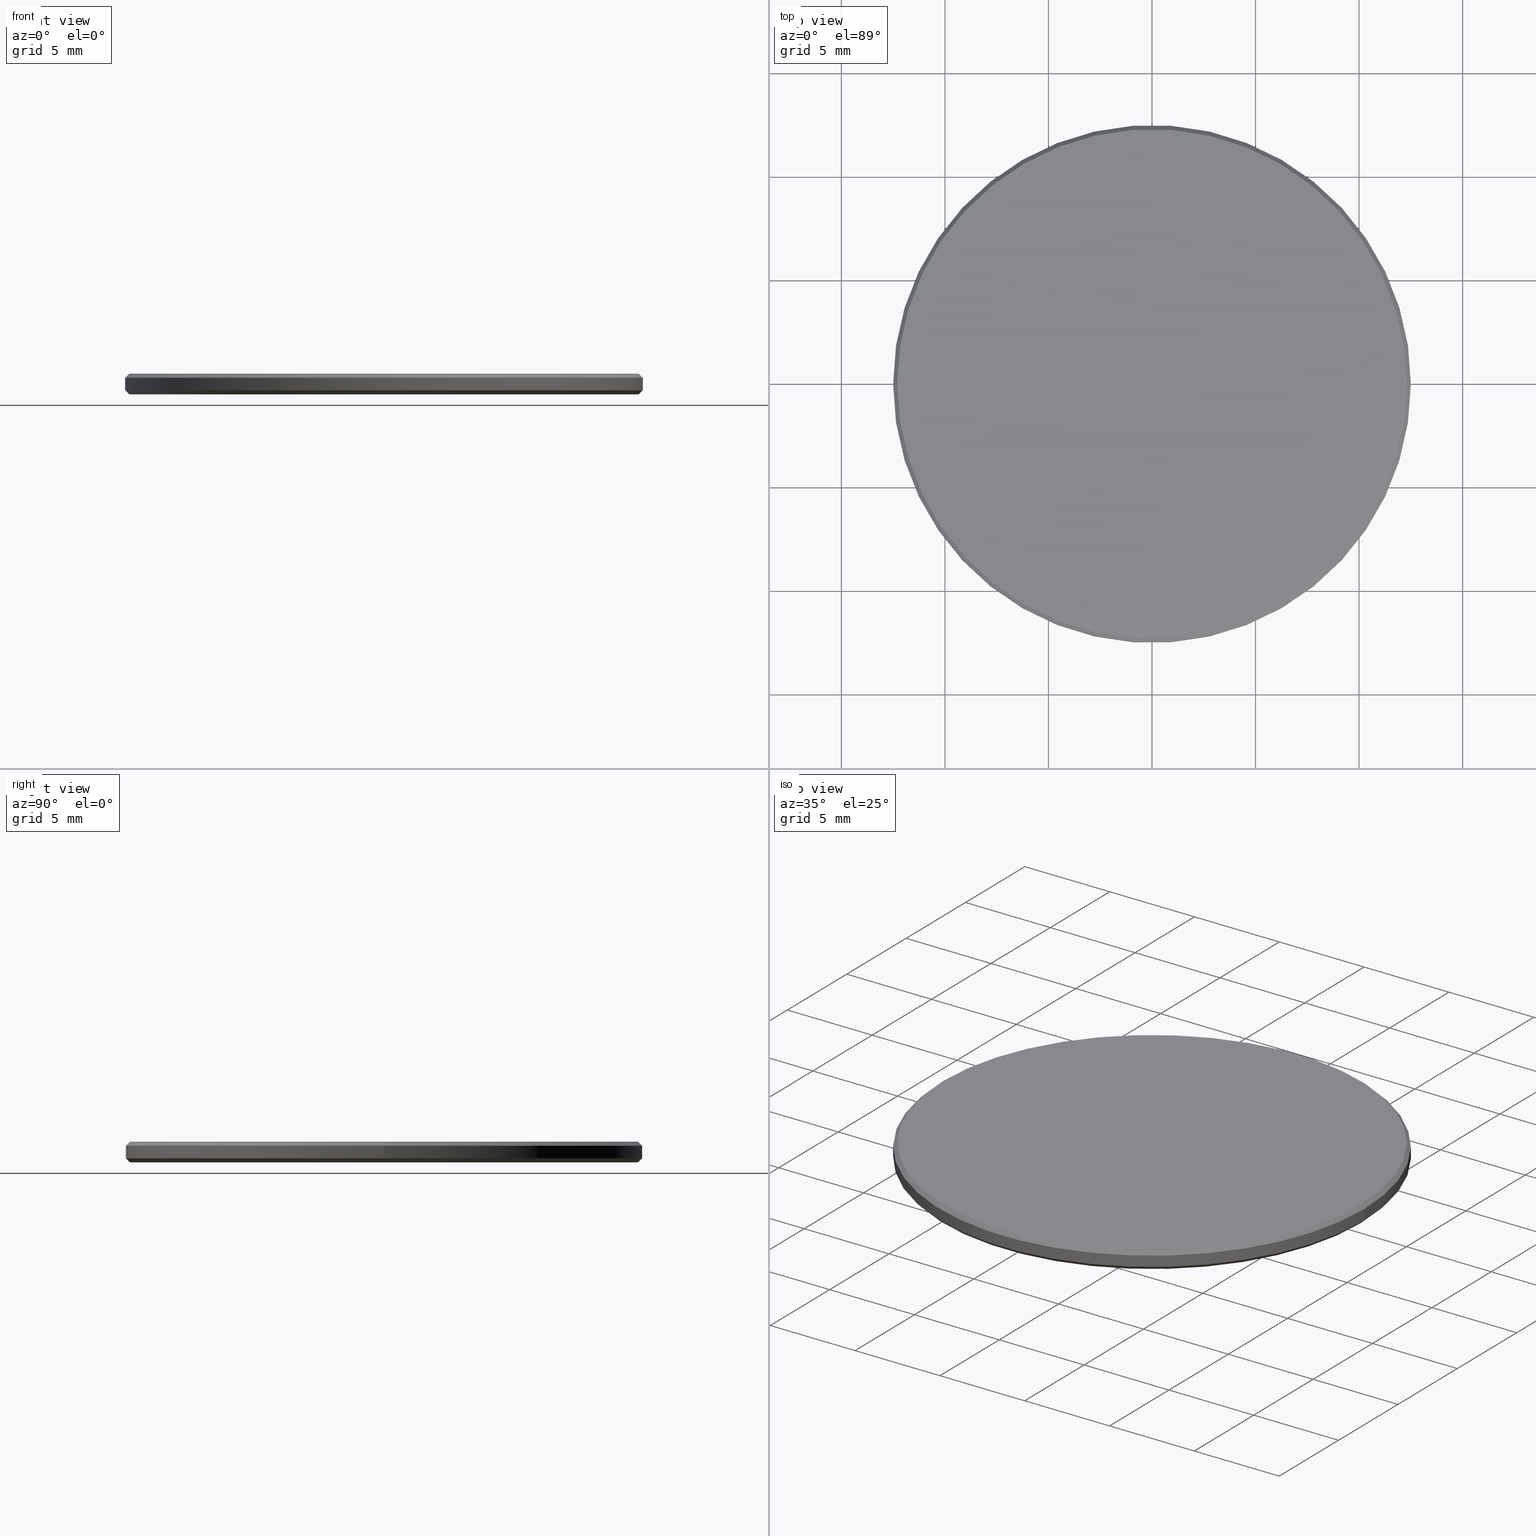
[diagram: canonical four-view strip — front | top / right | iso, engineering-drawing reading convention]
A machine part, canonical four-view strip (front | top / right | iso — engineering-drawing reading convention). The complete STEP part file that produces these views, byte-faithful:
ISO-10303-21;
HEADER;
FILE_DESCRIPTION (( 'STEP AP214' ),
    '1' );
FILE_NAME ('GNIF-350-3330-D25.STEP',
    '2024-07-19T14:32:16',
    ( '' ),
    ( '' ),
    'SwSTEP 2.0',
    'SolidWorks 2022',
    '' );
FILE_SCHEMA (( 'AUTOMOTIVE_DESIGN' ));
ENDSEC;

DATA;
#1 = ORIENTED_EDGE ( 'NONE', *, *, #40, .F. ) ;
#2 = CARTESIAN_POINT ( 'NONE',  ( 0.000000000000000000, 0.000000000000000000, 0.1999999999999987899 ) ) ;
#3 = DIRECTION ( 'NONE',  ( 1.000000000000000000, 0.000000000000000000, -0.000000000000000000 ) ) ;
#4 = CARTESIAN_POINT ( 'NONE',  ( 0.000000000000000000, 0.000000000000000000, 1.000000000000000000 ) ) ;
#5 = DIRECTION ( 'NONE',  ( 0.000000000000000000, 0.000000000000000000, -1.000000000000000000 ) ) ;
#6 = DIRECTION ( 'NONE',  ( 1.000000000000000000, 0.000000000000000000, 0.000000000000000000 ) ) ;
#7 = CIRCLE ( 'NONE', #60, 12.50000000000000000 ) ;
#8 = AXIS2_PLACEMENT_3D ( 'NONE', #121, #104, #176 ) ;
#9 = DIRECTION ( 'NONE',  ( 0.7071067811865474617, 0.000000000000000000, 0.7071067811865474617 ) ) ;
#10 = CARTESIAN_POINT ( 'NONE',  ( 12.29999999999999893, 1.518562030942717967E-15, 1.000000000000000000 ) ) ;
#11 = ADVANCED_FACE ( 'NONE', ( #129 ), #201, .F. ) ;
#12 = ADVANCED_FACE ( 'NONE', ( #203 ), #196, .T. ) ;
#13 = PRODUCT_CONTEXT ( 'NONE', #38, 'mechanical' ) ;
#14 = CIRCLE ( 'NONE', #162, 12.29999999999999893 ) ;
#15 = ORIENTED_EDGE ( 'NONE', *, *, #40, .T. ) ;
#16 = FILL_AREA_STYLE_COLOUR ( '', #194 ) ;
#17 = ORIENTED_EDGE ( 'NONE', *, *, #45, .F. ) ;
#18 = DIRECTION ( 'NONE',  ( 1.000000000000000000, 0.000000000000000000, 0.000000000000000000 ) ) ;
#19 = VECTOR ( 'NONE', #9, 1000.000000000000114 ) ;
#20 = AXIS2_PLACEMENT_3D ( 'NONE', #63, #134, #18 ) ;
#21 = ADVANCED_FACE ( 'NONE', ( #133 ), #184, .T. ) ;
#22 = DIRECTION ( 'NONE',  ( 0.000000000000000000, 0.000000000000000000, 1.000000000000000000 ) ) ;
#23 = VERTEX_POINT ( 'NONE', #94 ) ;
#24 = CARTESIAN_POINT ( 'NONE',  ( 0.000000000000000000, 0.000000000000000000, 0.1999999999999987899 ) ) ;
#25 = AXIS2_PLACEMENT_3D ( 'NONE', #200, #124, #193 ) ;
#26 = CARTESIAN_POINT ( 'NONE',  ( 0.000000000000000000, 0.000000000000000000, 1.000000000000000000 ) ) ;
#27 =( NAMED_UNIT ( * ) SI_UNIT ( $, .STERADIAN. ) SOLID_ANGLE_UNIT ( ) );
#28 = DIRECTION ( 'NONE',  ( 1.000000000000000000, 0.000000000000000000, 0.000000000000000000 ) ) ;
#29 = EDGE_CURVE ( 'NONE', #213, #23, #39, .T. ) ;
#30 = CARTESIAN_POINT ( 'NONE',  ( 0.000000000000000000, 0.000000000000000000, 0.000000000000000000 ) ) ;
#31 = VECTOR ( 'NONE', #169, 1000.000000000000000 ) ;
#32 = AXIS2_PLACEMENT_3D ( 'NONE', #137, #84, #102 ) ;
#33 = AXIS2_PLACEMENT_3D ( 'NONE', #26, #139, #101 ) ;
#34 = FILL_AREA_STYLE_COLOUR ( '', #103 ) ;
#35 = EDGE_LOOP ( 'NONE', ( #143, #96 ) ) ;
#36 =( NAMED_UNIT ( * ) PLANE_ANGLE_UNIT ( ) SI_UNIT ( $, .RADIAN. ) );
#37 = DIRECTION ( 'NONE',  ( 0.000000000000000000, 0.000000000000000000, 1.000000000000000000 ) ) ;
#38 = APPLICATION_CONTEXT ( 'automotive_design' ) ;
#39 = LINE ( 'NONE', #182, #87 ) ;
#40 = EDGE_CURVE ( 'NONE', #115, #23, #138, .T. ) ;
#41 = ORIENTED_EDGE ( 'NONE', *, *, #114, .T. ) ;
#42 = CARTESIAN_POINT ( 'NONE',  ( -12.50000000000000000, 0.000000000000000000, 1.000000000000000000 ) ) ;
#43 = ORIENTED_EDGE ( 'NONE', *, *, #154, .F. ) ;
#44 = DIRECTION ( 'NONE',  ( -1.000000000000000000, 0.000000000000000000, 0.000000000000000000 ) ) ;
#45 = EDGE_CURVE ( 'NONE', #115, #92, #98, .T. ) ;
#46 = AXIS2_PLACEMENT_3D ( 'NONE', #208, #5, #89 ) ;
#47 =( NAMED_UNIT ( * ) PLANE_ANGLE_UNIT ( ) SI_UNIT ( $, .RADIAN. ) );
#48 = EDGE_CURVE ( 'NONE', #151, #92, #152, .T. ) ;
#49 = CYLINDRICAL_SURFACE ( 'NONE', #8, 12.50000000000000000 ) ;
#50 = AXIS2_PLACEMENT_3D ( 'NONE', #86, #157, #44 ) ;
#51 = DIRECTION ( 'NONE',  ( -0.000000000000000000, -0.000000000000000000, -1.000000000000000000 ) ) ;
#52 = PRODUCT_DEFINITION_CONTEXT ( 'detailed design', #67, 'design' ) ;
#53 = SURFACE_SIDE_STYLE ('',( #218 ) ) ;
#54 =( LENGTH_UNIT ( ) NAMED_UNIT ( * ) SI_UNIT ( .MILLI., .METRE. ) );
#55 = ORIENTED_EDGE ( 'NONE', *, *, #69, .F. ) ;
#56 = ORIENTED_EDGE ( 'NONE', *, *, #114, .F. ) ;
#57 = MANIFOLD_SOLID_BREP ( '����1', #76 ) ;
#58 = ORIENTED_EDGE ( 'NONE', *, *, #69, .T. ) ;
#59 = ORIENTED_EDGE ( 'NONE', *, *, #123, .F. ) ;
#60 = AXIS2_PLACEMENT_3D ( 'NONE', #116, #68, #6 ) ;
#61 = VERTEX_POINT ( 'NONE', #100 ) ;
#62 = CIRCLE ( 'NONE', #126, 12.29999999999999893 ) ;
#63 = CARTESIAN_POINT ( 'NONE',  ( 0.000000000000000000, 0.000000000000000000, 0.8000000000000029310 ) ) ;
#64 = EDGE_CURVE ( 'NONE', #92, #240, #7, .T. ) ;
#65 = CYLINDRICAL_SURFACE ( 'NONE', #33, 12.50000000000000000 ) ;
#66 = FACE_OUTER_BOUND ( 'NONE', #166, .T. ) ;
#67 = APPLICATION_CONTEXT ( 'automotive_design' ) ;
#68 = DIRECTION ( 'NONE',  ( -0.000000000000000000, -0.000000000000000000, 1.000000000000000000 ) ) ;
#69 = EDGE_CURVE ( 'NONE', #23, #240, #230, .T. ) ;
#70 = FACE_OUTER_BOUND ( 'NONE', #223, .T. ) ;
#71 = MECHANICAL_DESIGN_GEOMETRIC_PRESENTATION_REPRESENTATION (  '', ( #170 ), #191 ) ;
#72 = SHAPE_DEFINITION_REPRESENTATION ( #174, #93 ) ;
#73 = ORIENTED_EDGE ( 'NONE', *, *, #64, .T. ) ;
#74 =( LENGTH_UNIT ( ) NAMED_UNIT ( * ) SI_UNIT ( .MILLI., .METRE. ) );
#75 = SURFACE_SIDE_STYLE ('',( #109 ) ) ;
#76 = CLOSED_SHELL ( 'NONE', ( #164, #108, #204, #83, #21, #11, #189, #12 ) ) ;
#77 = AXIS2_PLACEMENT_3D ( 'NONE', #30, #188, #85 ) ;
#78 = DIRECTION ( 'NONE',  ( -0.7071067811865474617, 8.659560562354932858E-17, 0.7071067811865474617 ) ) ;
#79 =( LENGTH_UNIT ( ) NAMED_UNIT ( * ) SI_UNIT ( .MILLI., .METRE. ) );
#80 = DIRECTION ( 'NONE',  ( -0.000000000000000000, -0.000000000000000000, 1.000000000000000000 ) ) ;
#81 = DIRECTION ( 'NONE',  ( 1.000000000000000000, 0.000000000000000000, 0.000000000000000000 ) ) ;
#82 = CONICAL_SURFACE ( 'NONE', #106, 12.29999999999999893, 0.7853981633974612686 ) ;
#83 = ADVANCED_FACE ( 'NONE', ( #140 ), #65, .T. ) ;
#84 = DIRECTION ( 'NONE',  ( -0.000000000000000000, -0.000000000000000000, 1.000000000000000000 ) ) ;
#85 = DIRECTION ( 'NONE',  ( 1.000000000000000000, 0.000000000000000000, 0.000000000000000000 ) ) ;
#86 = CARTESIAN_POINT ( 'NONE',  ( 0.000000000000000000, 0.000000000000000000, 1.000000000000000000 ) ) ;
#87 = VECTOR ( 'NONE', #226, 1000.000000000000000 ) ;
#88 = FACE_OUTER_BOUND ( 'NONE', #160, .T. ) ;
#89 = DIRECTION ( 'NONE',  ( 1.000000000000000000, 0.000000000000000000, 0.000000000000000000 ) ) ;
#90 = ORIENTED_EDGE ( 'NONE', *, *, #45, .T. ) ;
#91 = CIRCLE ( 'NONE', #46, 12.50000000000000000 ) ;
#92 = VERTEX_POINT ( 'NONE', #171 ) ;
#93 = ADVANCED_BREP_SHAPE_REPRESENTATION ( 'GNIF-350-3330-D25', ( #57, #25 ), #179 ) ;
#94 = CARTESIAN_POINT ( 'NONE',  ( 12.50000000000000000, 1.530808498934191521E-15, 0.8000000000000029310 ) ) ;
#95 =( NAMED_UNIT ( * ) SI_UNIT ( $, .STERADIAN. ) SOLID_ANGLE_UNIT ( ) );
#96 = ORIENTED_EDGE ( 'NONE', *, *, #233, .T. ) ;
#97 = DIRECTION ( 'NONE',  ( 1.000000000000000000, 0.000000000000000000, -0.000000000000000000 ) ) ;
#98 = LINE ( 'NONE', #42, #31 ) ;
#99 = CARTESIAN_POINT ( 'NONE',  ( -12.29999999999999893, 0.000000000000000000, 1.000000000000000000 ) ) ;
#100 = CARTESIAN_POINT ( 'NONE',  ( 12.30000000000000249, 0.000000000000000000, 0.000000000000000000 ) ) ;
#101 = DIRECTION ( 'NONE',  ( -1.000000000000000000, 0.000000000000000000, 0.000000000000000000 ) ) ;
#102 = DIRECTION ( 'NONE',  ( 1.000000000000000000, 0.000000000000000000, 0.000000000000000000 ) ) ;
#103 = COLOUR_RGB ( '',1.000000000000000000, 1.000000000000000000, 1.000000000000000000 ) ;
#104 = DIRECTION ( 'NONE',  ( -0.000000000000000000, -0.000000000000000000, -1.000000000000000000 ) ) ;
#105 = APPLICATION_PROTOCOL_DEFINITION ( 'draft international standard', 'automotive_design', 1998, #38 ) ;
#106 = AXIS2_PLACEMENT_3D ( 'NONE', #229, #210, #212 ) ;
#107 = UNCERTAINTY_MEASURE_WITH_UNIT (LENGTH_MEASURE( 1.000000000000000082E-05 ), #74, 'distance_accuracy_value', 'NONE');
#108 = ADVANCED_FACE ( 'NONE', ( #70 ), #177, .T. ) ;
#109 = SURFACE_STYLE_FILL_AREA ( #238 ) ;
#110 = EDGE_CURVE ( 'NONE', #224, #115, #172, .T. ) ;
#111 = ORIENTED_EDGE ( 'NONE', *, *, #150, .F. ) ;
#112 = AXIS2_PLACEMENT_3D ( 'NONE', #113, #22, #97 ) ;
#113 = CARTESIAN_POINT ( 'NONE',  ( 0.000000000000000000, 0.000000000000000000, 0.000000000000000000 ) ) ;
#114 = EDGE_CURVE ( 'NONE', #151, #61, #235, .T. ) ;
#115 = VERTEX_POINT ( 'NONE', #190 ) ;
#116 = CARTESIAN_POINT ( 'NONE',  ( 0.000000000000000000, 0.000000000000000000, 0.1999999999999987899 ) ) ;
#117 = CIRCLE ( 'NONE', #198, 12.50000000000000000 ) ;
#118 = DIRECTION ( 'NONE',  ( 1.000000000000000000, 0.000000000000000000, 0.000000000000000000 ) ) ;
#119 = DIRECTION ( 'NONE',  ( -0.000000000000000000, -0.000000000000000000, 1.000000000000000000 ) ) ;
#120 = DIRECTION ( 'NONE',  ( 0.000000000000000000, 0.000000000000000000, 1.000000000000000000 ) ) ;
#121 = CARTESIAN_POINT ( 'NONE',  ( 0.000000000000000000, 0.000000000000000000, 1.000000000000000000 ) ) ;
#122 = STYLED_ITEM ( 'NONE', ( #167 ), #57 ) ;
#123 = EDGE_CURVE ( 'NONE', #240, #92, #117, .T. ) ;
#124 = DIRECTION ( 'NONE',  ( 0.000000000000000000, 0.000000000000000000, 1.000000000000000000 ) ) ;
#125 = ORIENTED_EDGE ( 'NONE', *, *, #110, .T. ) ;
#126 = AXIS2_PLACEMENT_3D ( 'NONE', #209, #120, #28 ) ;
#127 = EDGE_CURVE ( 'NONE', #23, #115, #91, .T. ) ;
#128 = ORIENTED_EDGE ( 'NONE', *, *, #233, .F. ) ;
#129 = FACE_OUTER_BOUND ( 'NONE', #236, .T. ) ;
#130 = ORIENTED_EDGE ( 'NONE', *, *, #29, .T. ) ;
#131 = PRODUCT_RELATED_PRODUCT_CATEGORY ( 'part', '', ( #214 ) ) ;
#132 = PRESENTATION_LAYER_ASSIGNMENT (  '', '', ( #170 ) ) ;
#133 = FACE_OUTER_BOUND ( 'NONE', #35, .T. ) ;
#134 = DIRECTION ( 'NONE',  ( 0.000000000000000000, 0.000000000000000000, -1.000000000000000000 ) ) ;
#135 = CARTESIAN_POINT ( 'NONE',  ( 12.50000000000000000, 1.530808498934191521E-15, 1.000000000000000000 ) ) ;
#136 = CONICAL_SURFACE ( 'NONE', #32, 12.50000000000000000, 0.7853981633974482790 ) ;
#137 = CARTESIAN_POINT ( 'NONE',  ( 0.000000000000000000, 0.000000000000000000, 0.1999999999999987899 ) ) ;
#138 = CIRCLE ( 'NONE', #20, 12.50000000000000000 ) ;
#139 = DIRECTION ( 'NONE',  ( -0.000000000000000000, -0.000000000000000000, -1.000000000000000000 ) ) ;
#140 = FACE_OUTER_BOUND ( 'NONE', #163, .T. ) ;
#141 = CARTESIAN_POINT ( 'NONE',  ( -12.29999999999999893, 0.000000000000000000, 1.000000000000000000 ) ) ;
#142 = CIRCLE ( 'NONE', #77, 12.30000000000000249 ) ;
#143 = ORIENTED_EDGE ( 'NONE', *, *, #154, .T. ) ;
#144 = ORIENTED_EDGE ( 'NONE', *, *, #48, .T. ) ;
#145 = VECTOR ( 'NONE', #51, 1000.000000000000000 ) ;
#146 = FILL_AREA_STYLE ('',( #34 ) ) ;
#147 = ORIENTED_EDGE ( 'NONE', *, *, #48, .F. ) ;
#148 = SURFACE_STYLE_USAGE ( .BOTH. , #53 ) ;
#149 = ORIENTED_EDGE ( 'NONE', *, *, #29, .F. ) ;
#150 = EDGE_CURVE ( 'NONE', #61, #151, #142, .T. ) ;
#151 = VERTEX_POINT ( 'NONE', #228 ) ;
#152 = LINE ( 'NONE', #205, #183 ) ;
#153 = DIRECTION ( 'NONE',  ( 0.000000000000000000, 0.000000000000000000, 1.000000000000000000 ) ) ;
#154 = EDGE_CURVE ( 'NONE', #224, #213, #62, .T. ) ;
#155 = DIRECTION ( 'NONE',  ( -0.7071067811865566766, 0.000000000000000000, -0.7071067811865383579 ) ) ;
#156 = MECHANICAL_DESIGN_GEOMETRIC_PRESENTATION_REPRESENTATION (  '', ( #122 ), #215 ) ;
#157 = DIRECTION ( 'NONE',  ( 0.000000000000000000, 0.000000000000000000, -1.000000000000000000 ) ) ;
#158 = LINE ( 'NONE', #175, #19 ) ;
#159 = AXIS2_PLACEMENT_3D ( 'NONE', #206, #192, #173 ) ;
#160 = EDGE_LOOP ( 'NONE', ( #149, #43, #125, #216 ) ) ;
#161 = PRESENTATION_LAYER_ASSIGNMENT (  '', '', ( #122 ) ) ;
#162 = AXIS2_PLACEMENT_3D ( 'NONE', #4, #153, #227 ) ;
#163 = EDGE_LOOP ( 'NONE', ( #55, #178, #90, #73 ) ) ;
#164 = ADVANCED_FACE ( 'NONE', ( #66 ), #136, .T. ) ;
#165 = EDGE_LOOP ( 'NONE', ( #15, #58, #168, #17 ) ) ;
#166 = EDGE_LOOP ( 'NONE', ( #56, #144, #59, #180 ) ) ;
#167 = PRESENTATION_STYLE_ASSIGNMENT (( #181 ) ) ;
#168 = ORIENTED_EDGE ( 'NONE', *, *, #123, .T. ) ;
#169 = DIRECTION ( 'NONE',  ( -0.000000000000000000, -0.000000000000000000, -1.000000000000000000 ) ) ;
#170 = STYLED_ITEM ( 'NONE', ( #220 ), #93 ) ;
#171 = CARTESIAN_POINT ( 'NONE',  ( -12.50000000000000000, 0.000000000000000000, 0.1999999999999987899 ) ) ;
#172 = LINE ( 'NONE', #141, #211 ) ;
#173 = DIRECTION ( 'NONE',  ( 1.000000000000000000, 0.000000000000000000, 0.000000000000000000 ) ) ;
#174 = PRODUCT_DEFINITION_SHAPE ( 'NONE', 'NONE',  #217 ) ;
#175 = CARTESIAN_POINT ( 'NONE',  ( 12.50000000000000000, 0.000000000000000000, 0.1999999999999987899 ) ) ;
#176 = DIRECTION ( 'NONE',  ( -1.000000000000000000, 0.000000000000000000, 0.000000000000000000 ) ) ;
#177 = CONICAL_SURFACE ( 'NONE', #50, 12.29999999999999893, 0.7853981633974612686 ) ;
#178 = ORIENTED_EDGE ( 'NONE', *, *, #127, .T. ) ;
#179 =( GEOMETRIC_REPRESENTATION_CONTEXT ( 3 ) GLOBAL_UNCERTAINTY_ASSIGNED_CONTEXT ( ( #107 ) ) GLOBAL_UNIT_ASSIGNED_CONTEXT ( ( #74, #36, #232 ) ) REPRESENTATION_CONTEXT ( 'NONE', 'WORKASPACE' ) );
#180 = ORIENTED_EDGE ( 'NONE', *, *, #187, .F. ) ;
#181 = SURFACE_STYLE_USAGE ( .BOTH. , #75 ) ;
#182 = CARTESIAN_POINT ( 'NONE',  ( 12.29999999999999893, 1.506315562951244216E-15, 1.000000000000000000 ) ) ;
#183 = VECTOR ( 'NONE', #78, 1000.000000000000114 ) ;
#184 = PLANE ( 'NONE',  #225 ) ;
#185 = EDGE_LOOP ( 'NONE', ( #147, #111, #202, #219 ) ) ;
#186 = FACE_OUTER_BOUND ( 'NONE', #165, .T. ) ;
#187 = EDGE_CURVE ( 'NONE', #61, #240, #158, .T. ) ;
#188 = DIRECTION ( 'NONE',  ( -0.000000000000000000, -0.000000000000000000, -1.000000000000000000 ) ) ;
#189 = ADVANCED_FACE ( 'NONE', ( #88 ), #82, .T. ) ;
#190 = CARTESIAN_POINT ( 'NONE',  ( -12.50000000000000000, 0.000000000000000000, 0.8000000000000029310 ) ) ;
#191 =( GEOMETRIC_REPRESENTATION_CONTEXT ( 3 ) GLOBAL_UNCERTAINTY_ASSIGNED_CONTEXT ( ( #231 ) ) GLOBAL_UNIT_ASSIGNED_CONTEXT ( ( #54, #237, #95 ) ) REPRESENTATION_CONTEXT ( 'NONE', 'WORKASPACE' ) );
#192 = DIRECTION ( 'NONE',  ( -0.000000000000000000, -0.000000000000000000, -1.000000000000000000 ) ) ;
#193 = DIRECTION ( 'NONE',  ( 1.000000000000000000, 0.000000000000000000, 0.000000000000000000 ) ) ;
#194 = COLOUR_RGB ( '',1.000000000000000000, 1.000000000000000000, 1.000000000000000000 ) ;
#195 = PRODUCT_DEFINITION_FORMATION_WITH_SPECIFIED_SOURCE ( '�κ�', '', #214, .NOT_KNOWN. ) ;
#196 = CONICAL_SURFACE ( 'NONE', #207, 12.50000000000000000, 0.7853981633974482790 ) ;
#197 = APPLICATION_PROTOCOL_DEFINITION ( 'draft international standard', 'automotive_design', 1998, #67 ) ;
#198 = AXIS2_PLACEMENT_3D ( 'NONE', #24, #119, #118 ) ;
#199 = CARTESIAN_POINT ( 'NONE',  ( 0.000000000000000000, 0.000000000000000000, 1.000000000000000000 ) ) ;
#200 = CARTESIAN_POINT ( 'NONE',  ( 0.000000000000000000, 0.000000000000000000, 0.000000000000000000 ) ) ;
#201 = PLANE ( 'NONE',  #112 ) ;
#202 = ORIENTED_EDGE ( 'NONE', *, *, #187, .T. ) ;
#203 = FACE_OUTER_BOUND ( 'NONE', #185, .T. ) ;
#204 = ADVANCED_FACE ( 'NONE', ( #186 ), #49, .T. ) ;
#205 = CARTESIAN_POINT ( 'NONE',  ( -12.50000000000000000, 1.530808498934191521E-15, 0.1999999999999987899 ) ) ;
#206 = CARTESIAN_POINT ( 'NONE',  ( 0.000000000000000000, 0.000000000000000000, 0.000000000000000000 ) ) ;
#207 = AXIS2_PLACEMENT_3D ( 'NONE', #2, #80, #81 ) ;
#208 = CARTESIAN_POINT ( 'NONE',  ( 0.000000000000000000, 0.000000000000000000, 0.8000000000000029310 ) ) ;
#209 = CARTESIAN_POINT ( 'NONE',  ( 0.000000000000000000, 0.000000000000000000, 1.000000000000000000 ) ) ;
#210 = DIRECTION ( 'NONE',  ( 0.000000000000000000, 0.000000000000000000, -1.000000000000000000 ) ) ;
#211 = VECTOR ( 'NONE', #155, 1000.000000000000000 ) ;
#212 = DIRECTION ( 'NONE',  ( -1.000000000000000000, 0.000000000000000000, 0.000000000000000000 ) ) ;
#213 = VERTEX_POINT ( 'NONE', #10 ) ;
#214 = PRODUCT ( 'GNIF-350-3330-D25', 'GNIF-350-3330-D25', '', ( #13 ) ) ;
#215 =( GEOMETRIC_REPRESENTATION_CONTEXT ( 3 ) GLOBAL_UNCERTAINTY_ASSIGNED_CONTEXT ( ( #222 ) ) GLOBAL_UNIT_ASSIGNED_CONTEXT ( ( #79, #47, #27 ) ) REPRESENTATION_CONTEXT ( 'NONE', 'WORKASPACE' ) );
#216 = ORIENTED_EDGE ( 'NONE', *, *, #127, .F. ) ;
#217 = PRODUCT_DEFINITION ( 'δ֪', '', #195, #52 ) ;
#218 = SURFACE_STYLE_FILL_AREA ( #146 ) ;
#219 = ORIENTED_EDGE ( 'NONE', *, *, #64, .F. ) ;
#220 = PRESENTATION_STYLE_ASSIGNMENT (( #148 ) ) ;
#221 = ORIENTED_EDGE ( 'NONE', *, *, #150, .T. ) ;
#222 = UNCERTAINTY_MEASURE_WITH_UNIT (LENGTH_MEASURE( 1.000000000000000082E-05 ), #79, 'distance_accuracy_value', 'NONE');
#223 = EDGE_LOOP ( 'NONE', ( #128, #130, #1, #234 ) ) ;
#224 = VERTEX_POINT ( 'NONE', #99 ) ;
#225 = AXIS2_PLACEMENT_3D ( 'NONE', #199, #37, #3 ) ;
#226 = DIRECTION ( 'NONE',  ( 0.7071067811865566766, 8.659560562355045024E-17, -0.7071067811865383579 ) ) ;
#227 = DIRECTION ( 'NONE',  ( 1.000000000000000000, 0.000000000000000000, 0.000000000000000000 ) ) ;
#228 = CARTESIAN_POINT ( 'NONE',  ( -12.30000000000000249, 1.518562030942718164E-15, 0.000000000000000000 ) ) ;
#229 = CARTESIAN_POINT ( 'NONE',  ( 0.000000000000000000, 0.000000000000000000, 1.000000000000000000 ) ) ;
#230 = LINE ( 'NONE', #135, #145 ) ;
#231 = UNCERTAINTY_MEASURE_WITH_UNIT (LENGTH_MEASURE( 1.000000000000000082E-05 ), #54, 'distance_accuracy_value', 'NONE');
#232 =( NAMED_UNIT ( * ) SI_UNIT ( $, .STERADIAN. ) SOLID_ANGLE_UNIT ( ) );
#233 = EDGE_CURVE ( 'NONE', #213, #224, #14, .T. ) ;
#234 = ORIENTED_EDGE ( 'NONE', *, *, #110, .F. ) ;
#235 = CIRCLE ( 'NONE', #159, 12.30000000000000249 ) ;
#236 = EDGE_LOOP ( 'NONE', ( #221, #41 ) ) ;
#237 =( NAMED_UNIT ( * ) PLANE_ANGLE_UNIT ( ) SI_UNIT ( $, .RADIAN. ) );
#238 = FILL_AREA_STYLE ('',( #16 ) ) ;
#239 = CARTESIAN_POINT ( 'NONE',  ( 12.50000000000000000, 1.530808498934191521E-15, 0.1999999999999987899 ) ) ;
#240 = VERTEX_POINT ( 'NONE', #239 ) ;
ENDSEC;
END-ISO-10303-21;
